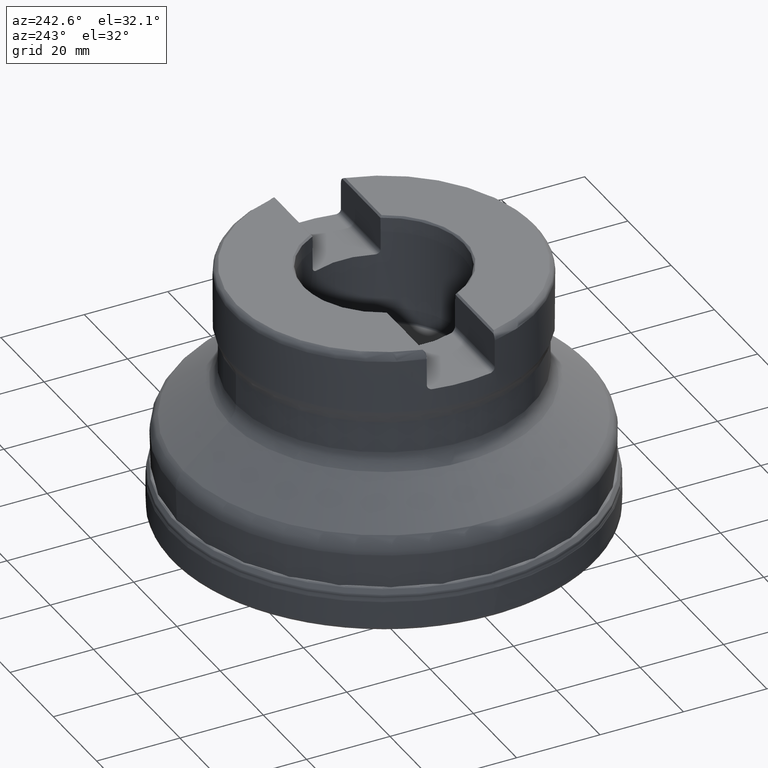
[diagram: clean part render]
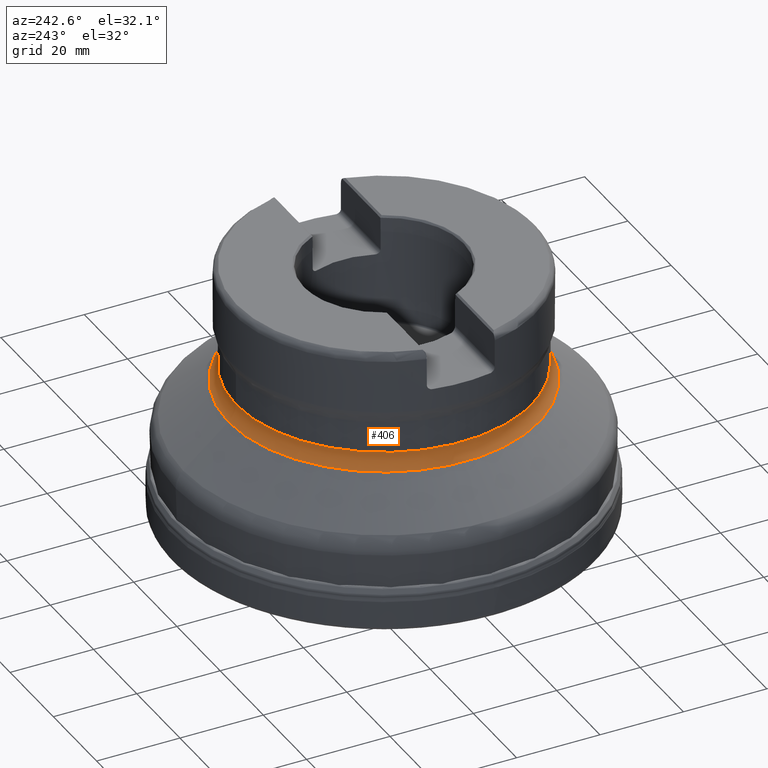
[diagram: same view with one face highlighted and labeled with its STEP entity id]
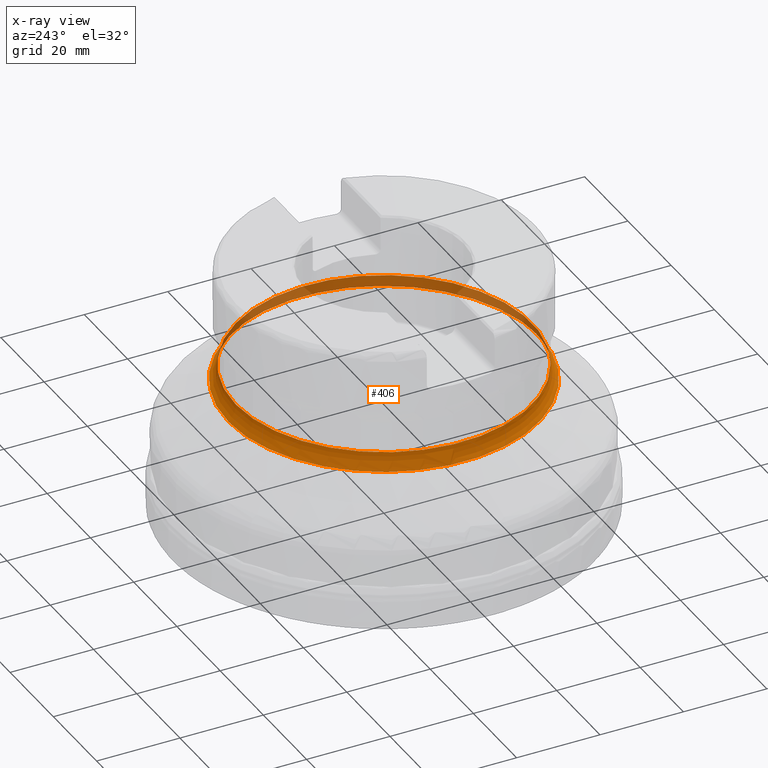
[diagram: x-ray of the same camera — body ghosted, the highlighted face saturated]
A machine part, auxiliary view. The second image highlights one B-rep face of the part: STEP entity #406.
The next image is the same camera in x-ray: the body ghosted, the highlighted face saturated — about 28% of this face is hidden behind the body in this view.
In plain terms, the highlighted toroidal blend (fillet) surface has major radius 40.5 mm and minor (blend) radius 5 mm.
Its self-contained STEP definition (entity closure, byte-faithful):
#218=FACE_BOUND('',#544,.T.);
#219=FACE_BOUND('',#545,.T.);
#406=ADVANCED_FACE('',(#218,#219),#447,.F.);
#447=TOROIDAL_SURFACE('',#1287,40.5,5.);
#544=EDGE_LOOP('',(#843));
#545=EDGE_LOOP('',(#844));
#615=CIRCLE('',#1219,35.5);
#617=CIRCLE('',#1222,37.2860619515673);
#843=ORIENTED_EDGE('',*,*,#1049,.F.);
#844=ORIENTED_EDGE('',*,*,#1051,.F.);
#942=VERTEX_POINT('',#2068);
#944=VERTEX_POINT('',#2073);
#1049=EDGE_CURVE('',#942,#942,#615,.T.);
#1051=EDGE_CURVE('',#944,#944,#617,.T.);
#1219=AXIS2_PLACEMENT_3D('',#2067,#1380,#1381);
#1222=AXIS2_PLACEMENT_3D('',#2072,#1386,#1387);
#1287=AXIS2_PLACEMENT_3D('',#2285,#1528,#1529);
#1380=DIRECTION('',(0.,1.17145536458252E-15,1.));
#1381=DIRECTION('',(0.,1.,-1.17277080066038E-15));
#1386=DIRECTION('',(0.,-1.17145536458252E-15,-1.));
#1387=DIRECTION('',(0.,1.,-1.1165932051908E-15));
#1528=DIRECTION('',(0.,-1.17145536458252E-15,-1.));
#1529=DIRECTION('',(0.,1.,-1.22002530178589E-15));
#2067=CARTESIAN_POINT('',(0.,4.1243244217416E-14,35.2068422445733));
#2068=CARTESIAN_POINT('',(0.,35.5000000000001,35.2068422445732));
#2072=CARTESIAN_POINT('',(0.,3.67563098554142E-14,31.3766200289784));
#2073=CARTESIAN_POINT('',(0.,37.2860619515674,31.3766200289783));
#2285=CARTESIAN_POINT('',(0.,4.1243244217416E-14,35.2068422445733));